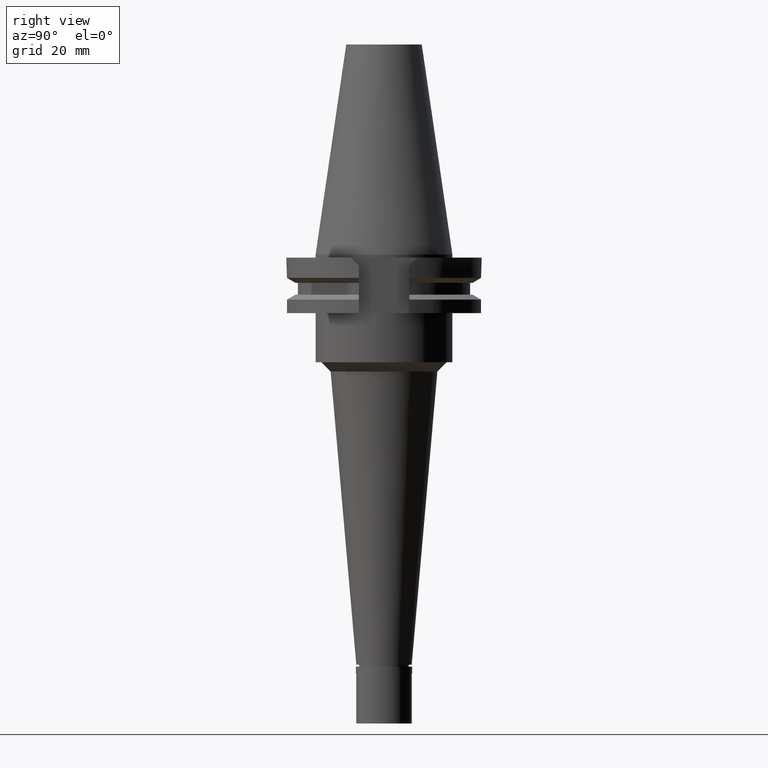
[diagram: clean part render]
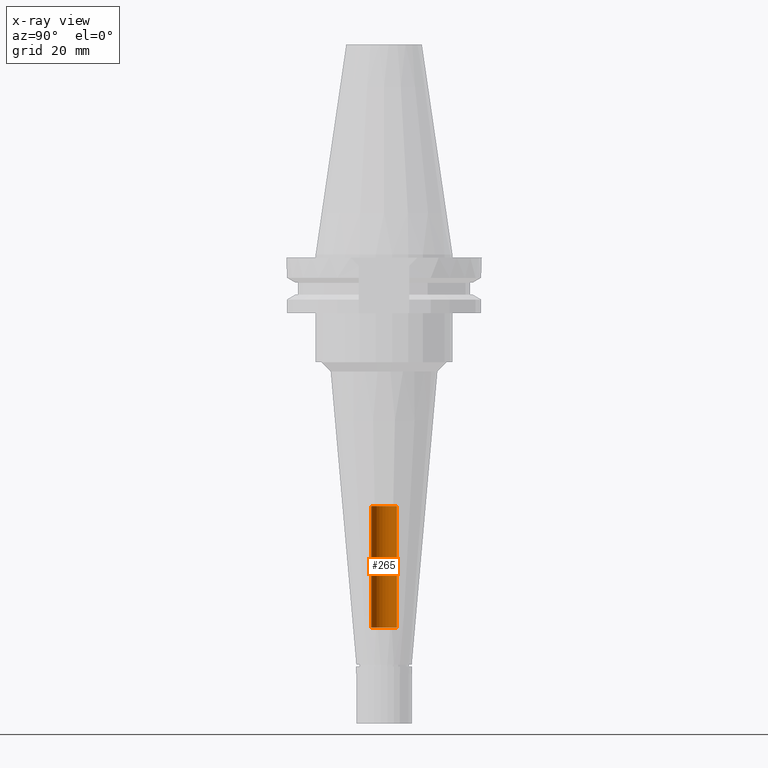
[diagram: x-ray — body ghosted, one internal face saturated and labeled with its STEP entity id]
A machine part, right view, then the same camera in x-ray: the body is ghosted and one INTERNAL B-rep face — a face not visible from any outside direction — is saturated and labeled: STEP entity #265.
In plain terms, the highlighted cylindrical surface (edge-blend (fillet) strip) has radius 4.2 mm, axis along (0, 0, -1).
Its self-contained STEP definition (entity closure, byte-faithful):
#74 = VERTEX_POINT ( 'NONE', #2394 ) ;
#119 = CARTESIAN_POINT ( 'NONE',  ( 0.0000000000000000000, 2.192760710042999810E-14, -121.3000000000000114 ) ) ;
#151 = VERTEX_POINT ( 'NONE', #958 ) ;
#265 = ADVANCED_FACE ( 'NONE', ( #1445 ), #3157, .F. ) ;
#298 = DIRECTION ( 'NONE',  ( 0.0000000000000000000, 1.000000000000000000, 0.0000000000000000000 ) ) ;
#302 = EDGE_CURVE ( 'NONE', #151, #3142, #1344, .T. ) ;
#328 = CIRCLE ( 'NONE', #2114, 4.200000000000000178 ) ;
#336 = EDGE_CURVE ( 'NONE', #151, #2285, #2647, .T. ) ;
#363 = CARTESIAN_POINT ( 'NONE',  ( 0.0000000000000000000, -4.200000000000000178, -121.3000000000000114 ) ) ;
#388 = CARTESIAN_POINT ( 'NONE',  ( 0.0000000000000000000, 4.200000000000000178, -121.3000000000000114 ) ) ;
#396 = ORIENTED_EDGE ( 'NONE', *, *, #3119, .T. ) ;
#463 = ORIENTED_EDGE ( 'NONE', *, *, #336, .T. ) ;
#512 = DIRECTION ( 'NONE',  ( 0.0000000000000000000, -1.000000000000000000, 0.0000000000000000000 ) ) ;
#649 = AXIS2_PLACEMENT_3D ( 'NONE', #1965, #2964, #512 ) ;
#658 = CARTESIAN_POINT ( 'NONE',  ( 0.0000000000000000000, -4.200000000000000178, -81.75000000000000000 ) ) ;
#724 = CARTESIAN_POINT ( 'NONE',  ( 0.0000000000000000000, 4.200000000000000178, -121.3000000000000114 ) ) ;
#825 = CARTESIAN_POINT ( 'NONE',  ( 0.0000000000000000000, 2.192760710042999810E-14, -81.75000000000000000 ) ) ;
#922 = EDGE_LOOP ( 'NONE', ( #2304, #1287, #463, #396 ) ) ;
#958 = CARTESIAN_POINT ( 'NONE',  ( 0.0000000000000000000, -4.200000000000000178, -121.3000000000000114 ) ) ;
#1054 = AXIS2_PLACEMENT_3D ( 'NONE', #119, #2584, #1311 ) ;
#1144 = DIRECTION ( 'NONE',  ( 0.0000000000000000000, 0.0000000000000000000, 1.000000000000000000 ) ) ;
#1260 = DIRECTION ( 'NONE',  ( 0.0000000000000000000, 0.0000000000000000000, 1.000000000000000000 ) ) ;
#1287 = ORIENTED_EDGE ( 'NONE', *, *, #302, .F. ) ;
#1311 = DIRECTION ( 'NONE',  ( 0.0000000000000000000, -1.000000000000000000, 0.0000000000000000000 ) ) ;
#1344 = LINE ( 'NONE', #363, #2128 ) ;
#1445 = FACE_OUTER_BOUND ( 'NONE', #922, .T. ) ;
#1562 = VECTOR ( 'NONE', #1144, 1000.000000000000000 ) ;
#1965 = CARTESIAN_POINT ( 'NONE',  ( 0.0000000000000000000, 2.192760710042999810E-14, 79.05249999999999488 ) ) ;
#2114 = AXIS2_PLACEMENT_3D ( 'NONE', #825, #1260, #298 ) ;
#2128 = VECTOR ( 'NONE', #2773, 1000.000000000000000 ) ;
#2285 = VERTEX_POINT ( 'NONE', #724 ) ;
#2304 = ORIENTED_EDGE ( 'NONE', *, *, #2570, .T. ) ;
#2394 = CARTESIAN_POINT ( 'NONE',  ( 0.0000000000000000000, 4.200000000000000178, -81.75000000000000000 ) ) ;
#2570 = EDGE_CURVE ( 'NONE', #74, #3142, #328, .T. ) ;
#2584 = DIRECTION ( 'NONE',  ( 0.0000000000000000000, 0.0000000000000000000, -1.000000000000000000 ) ) ;
#2647 = CIRCLE ( 'NONE', #1054, 4.200000000000000178 ) ;
#2773 = DIRECTION ( 'NONE',  ( 0.0000000000000000000, 0.0000000000000000000, 1.000000000000000000 ) ) ;
#2919 = LINE ( 'NONE', #388, #1562 ) ;
#2964 = DIRECTION ( 'NONE',  ( 0.0000000000000000000, 0.0000000000000000000, -1.000000000000000000 ) ) ;
#3119 = EDGE_CURVE ( 'NONE', #2285, #74, #2919, .T. ) ;
#3142 = VERTEX_POINT ( 'NONE', #658 ) ;
#3157 = CYLINDRICAL_SURFACE ( 'NONE', #649, 4.200000000000000178 ) ;